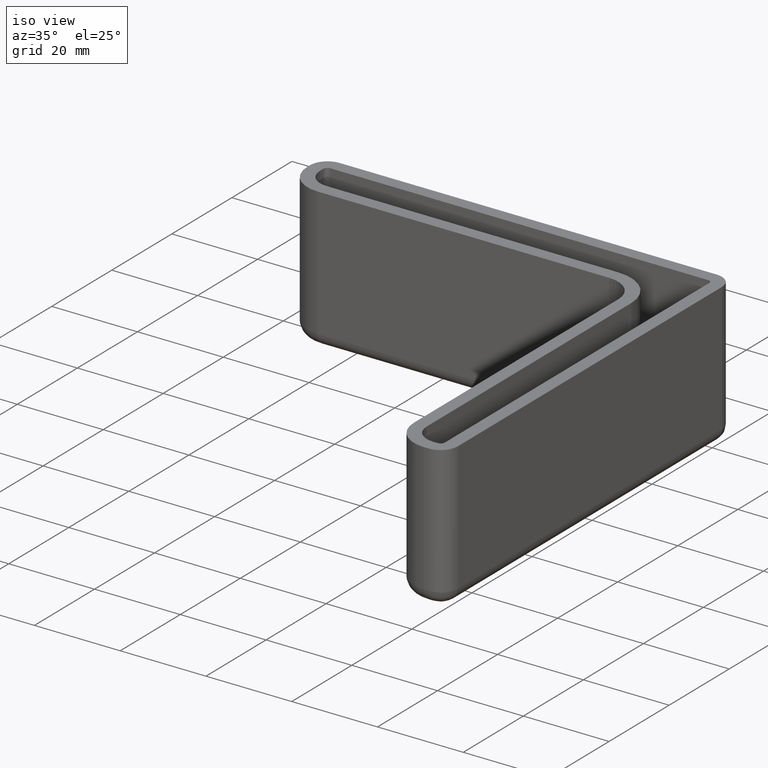
[diagram: clean part render]
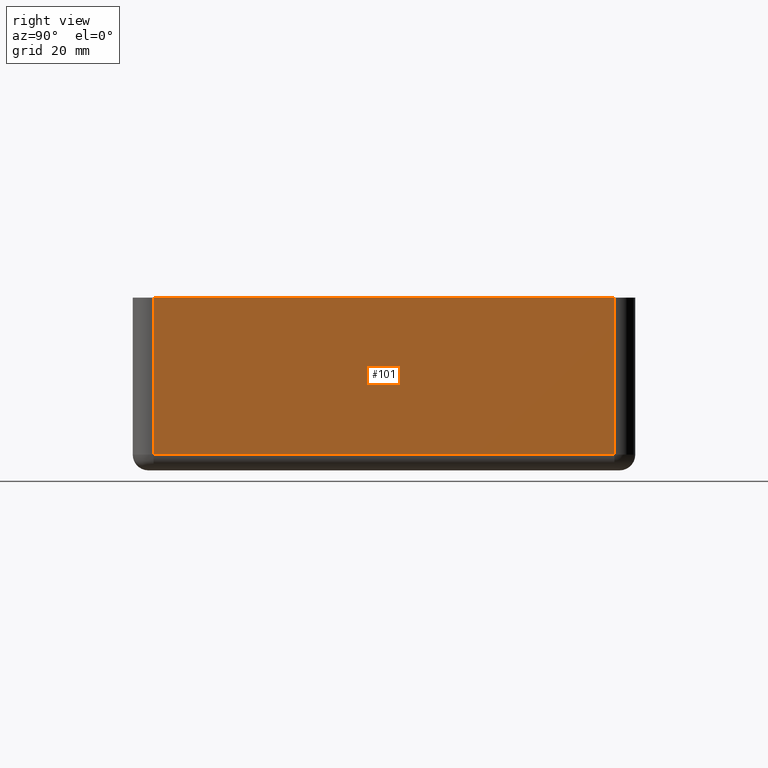
[diagram: tour spotlight — one face highlighted and labeled with its STEP entity id]
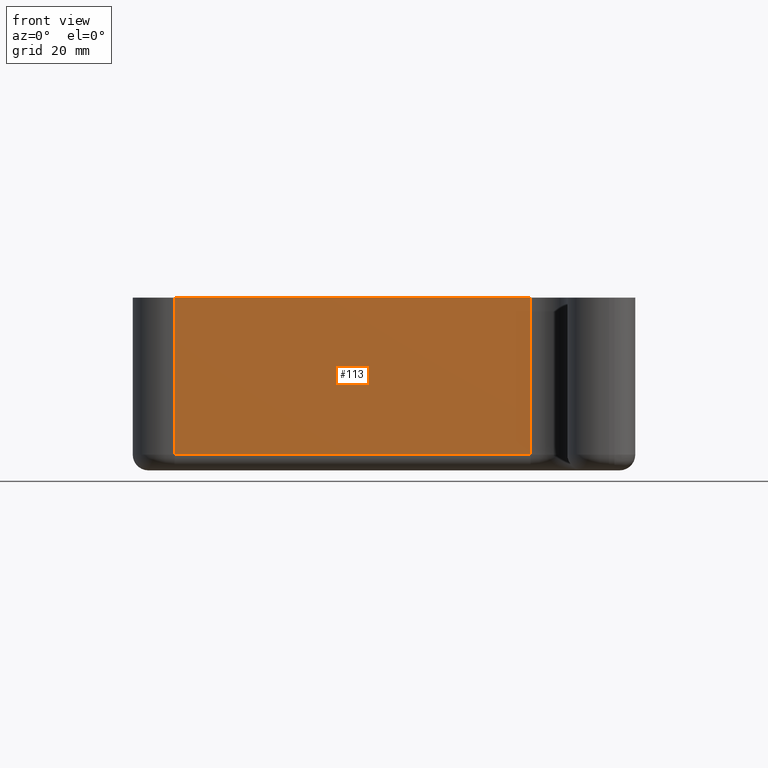
[diagram: tour spotlight — one face highlighted and labeled with its STEP entity id]
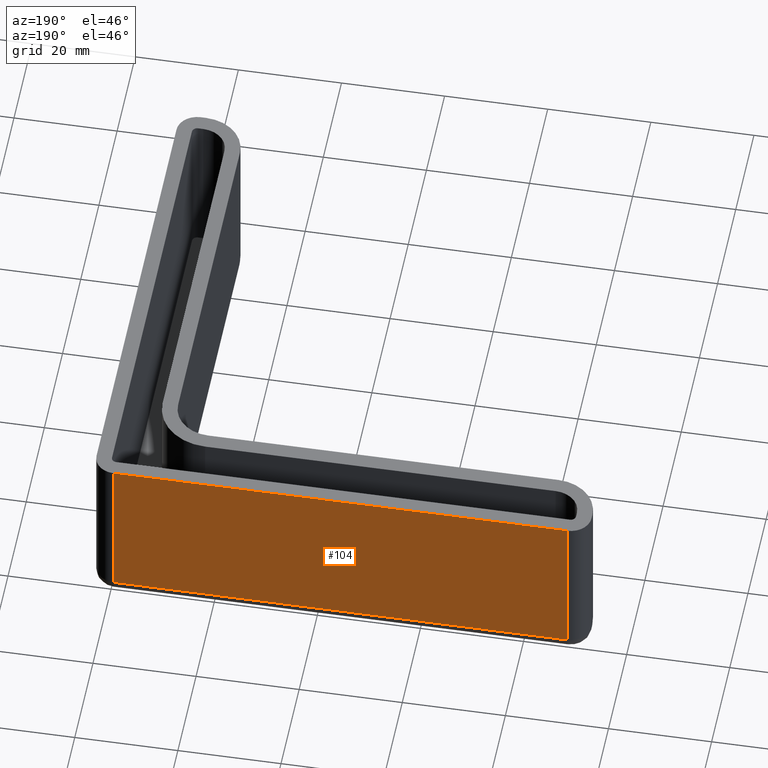
[diagram: tour spotlight — one face highlighted and labeled with its STEP entity id]
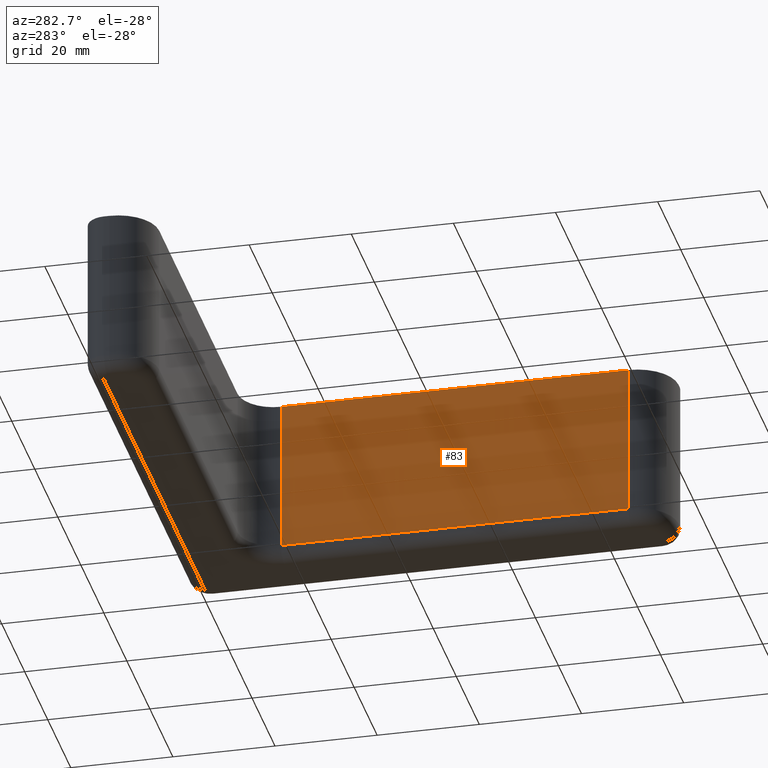
[diagram: tour spotlight — one face highlighted and labeled with its STEP entity id]
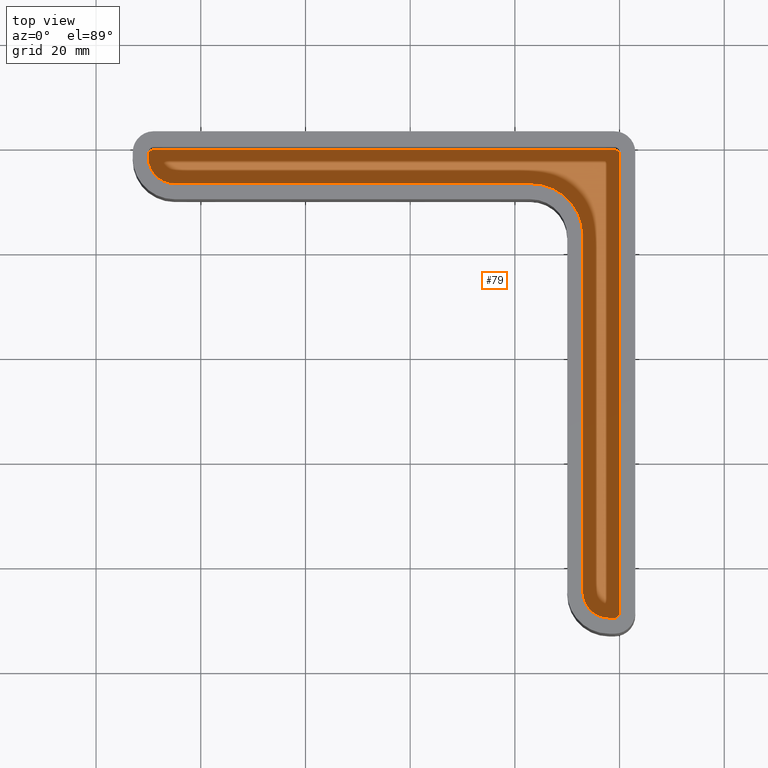
[diagram: tour spotlight — one face highlighted and labeled with its STEP entity id]
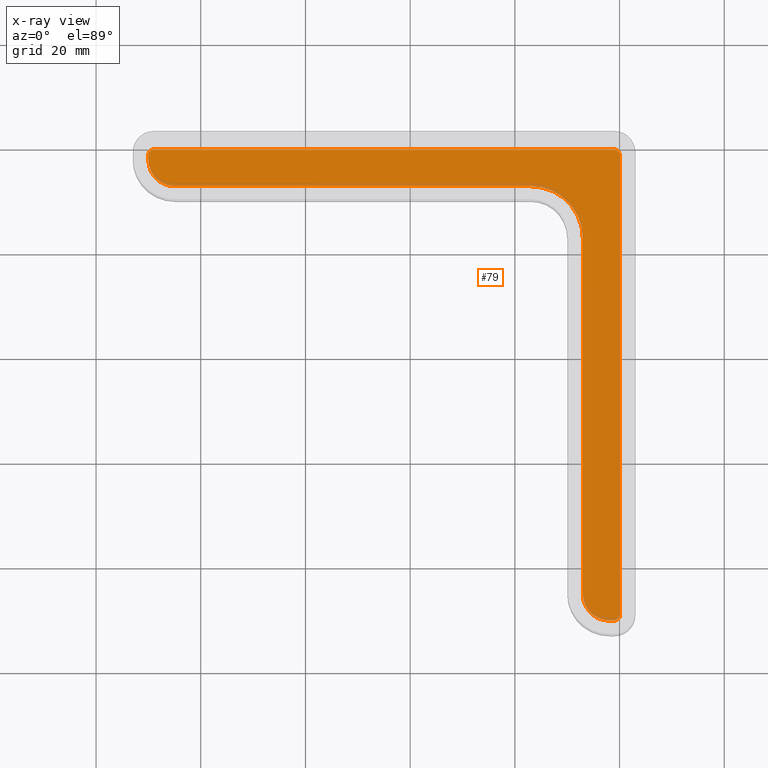
[diagram: x-ray of the same camera — body ghosted, this tour face saturated]
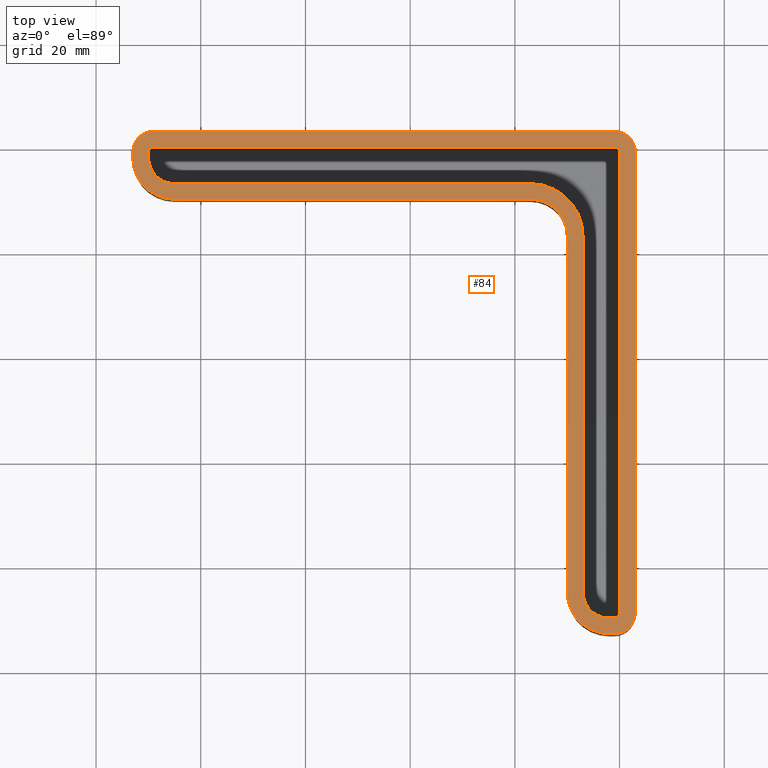
[diagram: tour spotlight — one face highlighted and labeled with its STEP entity id]
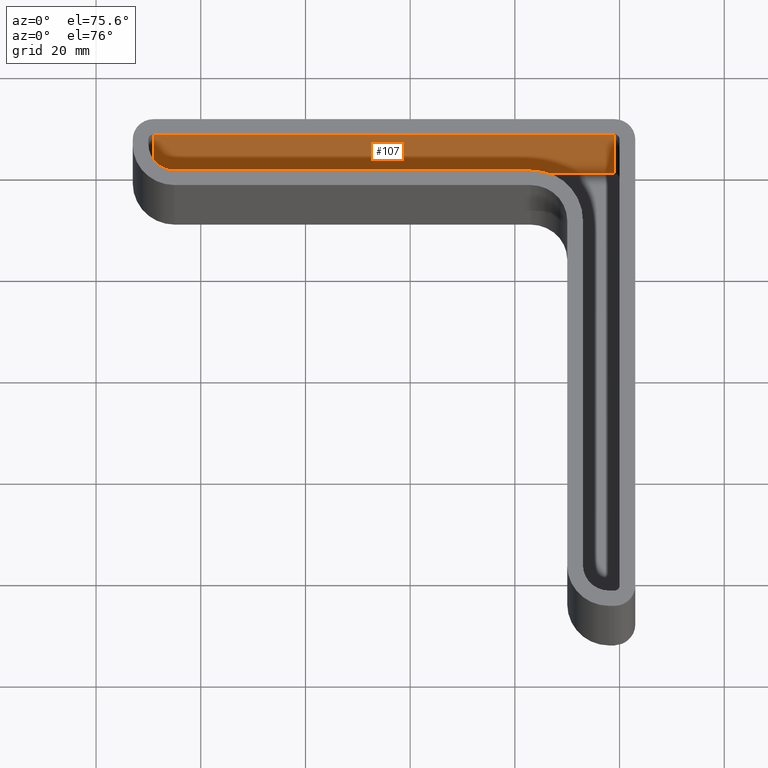
[diagram: tour spotlight — one face highlighted and labeled with its STEP entity id]
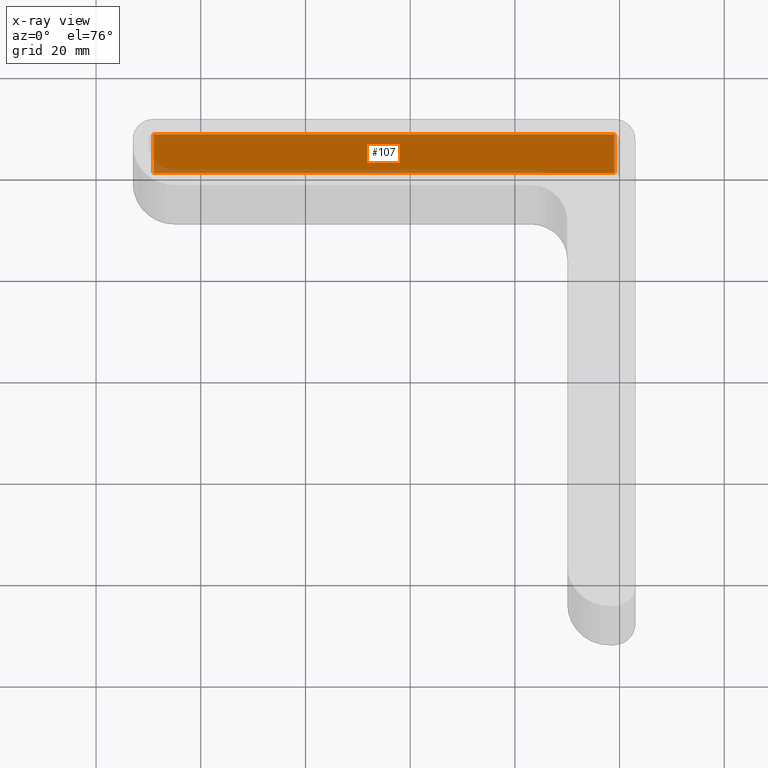
[diagram: x-ray of the same camera — body ghosted, this tour face saturated]
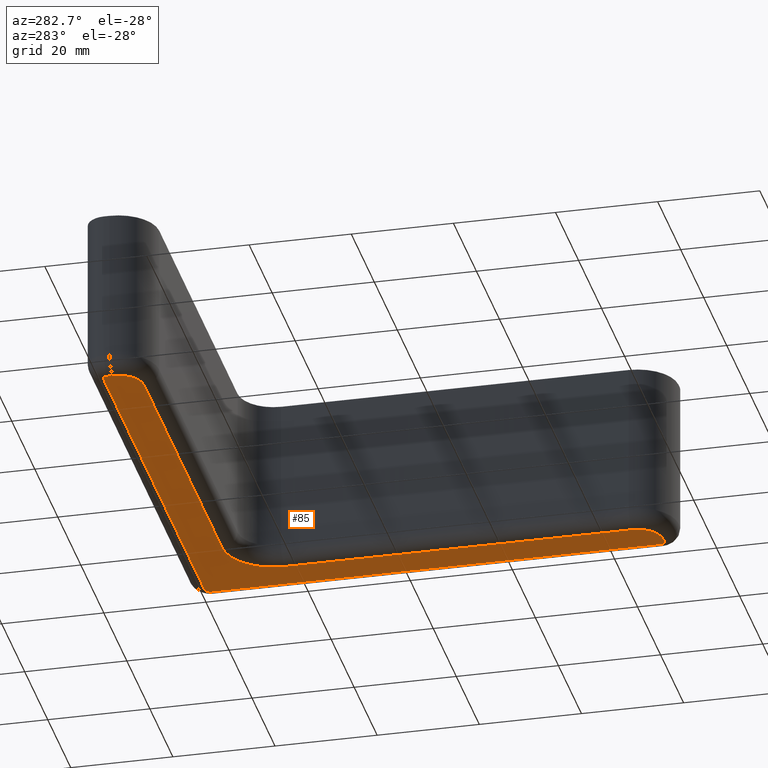
[diagram: tour spotlight — one face highlighted and labeled with its STEP entity id]
A machine part: a face-by-face anatomy tour. The part has 39 B-rep faces; the first image is the clean iso view, then the 8 largest visible faces are spotlighted one at a time (largest first), each with its STEP entity span.

Face 1 — right view, entity #101. In plain terms, the highlighted planar face has unit normal (1, 0, -0).
Definition (entity closure, byte-faithful):
#101 = ADVANCED_FACE( '', ( #168 ), #169, .T. );
#168 = FACE_OUTER_BOUND( '', #292, .T. );
#169 = PLANE( '', #293 );
#292 = EDGE_LOOP( '', ( #527, #528, #529, #530 ) );
#293 = AXIS2_PLACEMENT_3D( '', #531, #532, #533 );
#527 = ORIENTED_EDGE( '', *, *, #693, .F. );
#528 = ORIENTED_EDGE( '', *, *, #707, .F. );
#529 = ORIENTED_EDGE( '', *, *, #657, .F. );
#530 = ORIENTED_EDGE( '', *, *, #703, .F. );
#531 = CARTESIAN_POINT( '', ( 2.99999999999999, -90.0000000000000, -30.0000000000000 ) );
#532 = DIRECTION( '', ( 1.00000000000000, 3.58732406867153E-049, -3.58678896750442E-017 ) );
#533 = DIRECTION( '', ( 3.58678896750442E-017, -8.65927457071936E-017, 1.00000000000000 ) );
#657 = EDGE_CURVE( '', #785, #788, #789, .T. );
#693 = EDGE_CURVE( '', #844, #847, #849, .T. );
#703 = EDGE_CURVE( '', #847, #785, #859, .T. );
#707 = EDGE_CURVE( '', #788, #844, #863, .T. );
#785 = VERTEX_POINT( '', #963 );
#788 = VERTEX_POINT( '', #966 );
#789 = LINE( '', #967, #968 );
#844 = VERTEX_POINT( '', #1036 );
#847 = VERTEX_POINT( '', #1039 );
#849 = LINE( '', #1041, #1042 );
#859 = LINE( '', #1058, #1059 );
#863 = LINE( '', #1066, #1067 );
#963 = CARTESIAN_POINT( '', ( 2.99999999999999, -89.0000000000000, -8.16105878667191E-015 ) );
#966 = CARTESIAN_POINT( '', ( 2.99999999999999, -0.999999999999994, -5.40897164438877E-016 ) );
#967 = CARTESIAN_POINT( '', ( 2.99999999999998, -67.5000000000000, -6.29931475396725E-015 ) );
#968 = VECTOR( '', #1153, 1000.00000000000 );
#1036 = CARTESIAN_POINT( '', ( 2.99999999999998, -0.999999999999993, -30.0000000000000 ) );
#1039 = CARTESIAN_POINT( '', ( 3.00000000000000, -89.0000000000000, -30.0000000000000 ) );
#1041 = CARTESIAN_POINT( '', ( 2.99999999999998, -67.5000000000000, -30.0000000000000 ) );
#1042 = VECTOR( '', #1233, 1000.00000000000 );
#1058 = CARTESIAN_POINT( '', ( 3.00000000000000, -89.0000000000000, -30.0000000000000 ) );
#1059 = VECTOR( '', #1249, 1000.00000000000 );
#1066 = CARTESIAN_POINT( '', ( 2.99999999999998, -0.999999999999993, -30.0000000000000 ) );
#1067 = VECTOR( '', #1253, 1000.00000000000 );
#1153 = DIRECTION( '', ( 0.000000000000000, 1.00000000000000, 8.65927457071936E-017 ) );
#1233 = DIRECTION( '', ( 0.000000000000000, -1.00000000000000, -8.65927457071936E-017 ) );
#1249 = DIRECTION( '', ( 3.58678896750442E-017, -8.65927457071936E-017, 1.00000000000000 ) );
#1253 = DIRECTION( '', ( -3.58678896750442E-017, 8.65927457071936E-017, -1.00000000000000 ) );

Face 2 — front view, entity #113. In plain terms, the highlighted planar face has unit normal (0, -1, -0).
Definition (entity closure, byte-faithful):
#113 = ADVANCED_FACE( '', ( #192 ), #193, .T. );
#192 = FACE_OUTER_BOUND( '', #316, .T. );
#193 = PLANE( '', #317 );
#316 = EDGE_LOOP( '', ( #611, #612, #613, #614 ) );
#317 = AXIS2_PLACEMENT_3D( '', #615, #616, #617 );
#611 = ORIENTED_EDGE( '', *, *, #688, .F. );
#612 = ORIENTED_EDGE( '', *, *, #713, .F. );
#613 = ORIENTED_EDGE( '', *, *, #662, .F. );
#614 = ORIENTED_EDGE( '', *, *, #695, .F. );
#615 = CARTESIAN_POINT( '', ( -90.0000000000000, -9.99999999999999, -30.0000000000000 ) );
#616 = DIRECTION( '', ( 0.000000000000000, -1.00000000000000, -8.65927457071935E-017 ) );
#617 = DIRECTION( '', ( -1.00000000000000, -1.12138607406181E-032, 1.29501156812106E-016 ) );
#662 = EDGE_CURVE( '', #795, #797, #798, .T. );
#688 = EDGE_CURVE( '', #836, #840, #842, .T. );
#695 = EDGE_CURVE( '', #840, #795, #851, .T. );
#713 = EDGE_CURVE( '', #797, #836, #869, .T. );
#795 = VERTEX_POINT( '', #976 );
#797 = VERTEX_POINT( '', #978 );
#798 = LINE( '', #979, #980 );
#836 = VERTEX_POINT( '', #1027 );
#840 = VERTEX_POINT( '', #1031 );
#842 = LINE( '', #1033, #1034 );
#851 = LINE( '', #1044, #1045 );
#869 = LINE( '', #1078, #1079 );
#976 = CARTESIAN_POINT( '', ( -85.0000000000000, -9.99999999999999, 1.46794735782419E-015 ) );
#978 = CARTESIAN_POINT( '', ( -17.0000000000000, -10.0000000000000, 4.17360162006124E-016 ) );
#979 = CARTESIAN_POINT( '', ( -67.5000000000000, -9.99999999999999, -4.86126544253536E-016 ) );
#980 = VECTOR( '', #1162, 1000.00000000000 );
#1027 = CARTESIAN_POINT( '', ( -17.0000000000000, -9.99999999999999, -30.0000000000000 ) );
#1031 = CARTESIAN_POINT( '', ( -85.0000000000000, -9.99999999999999, -30.0000000000000 ) );
#1033 = CARTESIAN_POINT( '', ( -67.5000000000000, -9.99999999999999, -30.0000000000000 ) );
#1034 = VECTOR( '', #1220, 1000.00000000000 );
#1044 = CARTESIAN_POINT( '', ( -85.0000000000000, -9.99999999999999, -30.0000000000000 ) );
#1045 = VECTOR( '', #1237, 1000.00000000000 );
#1078 = CARTESIAN_POINT( '', ( -17.0000000000000, -9.99999999999999, -30.0000000000000 ) );
#1079 = VECTOR( '', #1259, 1000.00000000000 );
#1162 = DIRECTION( '', ( 1.00000000000000, 2.22044604925031E-016, -3.58678896750442E-017 ) );
#1220 = DIRECTION( '', ( -1.00000000000000, -2.22044604925031E-016, 3.58678896750442E-017 ) );
#1237 = DIRECTION( '', ( 3.58678896750442E-017, -8.65927457071936E-017, 1.00000000000000 ) );
#1259 = DIRECTION( '', ( -3.58678896750442E-017, 8.65927457071936E-017, -1.00000000000000 ) );

Face 3 — auxiliary view, entity #104. In plain terms, the highlighted planar face has unit normal (0, 1, 0).
Definition (entity closure, byte-faithful):
#104 = ADVANCED_FACE( '', ( #174 ), #175, .T. );
#174 = FACE_OUTER_BOUND( '', #298, .T. );
#175 = PLANE( '', #299 );
#298 = EDGE_LOOP( '', ( #548, #549, #550, #551 ) );
#299 = AXIS2_PLACEMENT_3D( '', #552, #553, #554 );
#548 = ORIENTED_EDGE( '', *, *, #648, .F. );
#549 = ORIENTED_EDGE( '', *, *, #651, .F. );
#550 = ORIENTED_EDGE( '', *, *, #659, .F. );
#551 = ORIENTED_EDGE( '', *, *, #710, .F. );
#552 = CARTESIAN_POINT( '', ( -1.60461921527855E-014, 3.00000000000000, -30.0000000000000 ) );
#553 = DIRECTION( '', ( 3.58732406867153E-049, 1.00000000000000, 8.65927457071936E-017 ) );
#554 = DIRECTION( '', ( -3.58678896750442E-017, 8.65927457071936E-017, -1.00000000000000 ) );
#648 = EDGE_CURVE( '', #762, #767, #771, .T. );
#651 = EDGE_CURVE( '', #774, #762, #776, .T. );
#659 = EDGE_CURVE( '', #790, #774, #792, .T. );
#710 = EDGE_CURVE( '', #767, #790, #866, .T. );
#762 = VERTEX_POINT( '', #932 );
#767 = VERTEX_POINT( '', #937 );
#771 = LINE( '', #942, #943 );
#774 = VERTEX_POINT( '', #947 );
#776 = LINE( '', #949, #950 );
#790 = VERTEX_POINT( '', #969 );
#792 = LINE( '', #971, #972 );
#866 = LINE( '', #1072, #1073 );
#932 = CARTESIAN_POINT( '', ( -89.0000000000000, 3.00000000000001, -30.0000000000000 ) );
#937 = CARTESIAN_POINT( '', ( -1.00000000000002, 3.00000000000000, -30.0000000000000 ) );
#942 = CARTESIAN_POINT( '', ( -22.5000000000000, 3.00000000000000, -30.0000000000000 ) );
#943 = VECTOR( '', #1140, 1000.00000000000 );
#947 = CARTESIAN_POINT( '', ( -89.0000000000000, 3.00000000000001, 2.24728206918893E-015 ) );
#949 = CARTESIAN_POINT( '', ( -89.0000000000000, 3.00000000000001, -30.0000000000000 ) );
#950 = VECTOR( '', #1145, 1000.00000000000 );
#969 = CARTESIAN_POINT( '', ( -1.00000000000001, 3.00000000000000, -5.40897164438877E-016 ) );
#971 = CARTESIAN_POINT( '', ( -22.5000000000000, 3.00000000000000, 1.06680575481008E-015 ) );
#972 = VECTOR( '', #1157, 1000.00000000000 );
#1072 = CARTESIAN_POINT( '', ( -1.00000000000002, 3.00000000000000, -30.0000000000000 ) );
#1073 = VECTOR( '', #1256, 1000.00000000000 );
#1140 = DIRECTION( '', ( 1.00000000000000, 0.000000000000000, -3.58678896750442E-017 ) );
#1145 = DIRECTION( '', ( -3.58678896750442E-017, 8.65927457071936E-017, -1.00000000000000 ) );
#1157 = DIRECTION( '', ( -1.00000000000000, 0.000000000000000, 3.58678896750442E-017 ) );
#1256 = DIRECTION( '', ( 3.58678896750442E-017, -8.65927457071936E-017, 1.00000000000000 ) );

Face 4 — auxiliary view, entity #83. In plain terms, the highlighted planar face has unit normal (-1, -0, 0).
Definition (entity closure, byte-faithful):
#83 = ADVANCED_FACE( '', ( #131 ), #132, .T. );
#131 = FACE_OUTER_BOUND( '', #225, .T. );
#132 = PLANE( '', #226 );
#225 = EDGE_LOOP( '', ( #379, #380, #381, #382 ) );
#226 = AXIS2_PLACEMENT_3D( '', #383, #384, #385 );
#379 = ORIENTED_EDGE( '', *, *, #652, .F. );
#380 = ORIENTED_EDGE( '', *, *, #653, .F. );
#381 = ORIENTED_EDGE( '', *, *, #654, .F. );
#382 = ORIENTED_EDGE( '', *, *, #655, .F. );
#383 = CARTESIAN_POINT( '', ( -10.0000000000000, -6.99999999999999, -30.0000000000000 ) );
#384 = DIRECTION( '', ( -1.00000000000000, -3.58732406867153E-049, 3.58678896750442E-017 ) );
#385 = DIRECTION( '', ( -3.10589904968477E-033, -1.00000000000000, -8.65927457071936E-017 ) );
#652 = EDGE_CURVE( '', #777, #778, #779, .T. );
#653 = EDGE_CURVE( '', #780, #777, #781, .T. );
#654 = EDGE_CURVE( '', #782, #780, #783, .T. );
#655 = EDGE_CURVE( '', #778, #782, #784, .T. );
#777 = VERTEX_POINT( '', #951 );
#778 = VERTEX_POINT( '', #952 );
#779 = LINE( '', #953, #954 );
#780 = VERTEX_POINT( '', #955 );
#781 = LINE( '', #956, #957 );
#782 = VERTEX_POINT( '', #958 );
#783 = LINE( '', #959, #960 );
#784 = LINE( '', #961, #962 );
#951 = CARTESIAN_POINT( '', ( -10.0000000000000, -85.0000000000000, -30.0000000000000 ) );
#952 = CARTESIAN_POINT( '', ( -10.0000000000000, -17.0000000000000, -30.0000000000000 ) );
#953 = CARTESIAN_POINT( '', ( -10.0000000000000, -26.0000000000000, -30.0000000000000 ) );
#954 = VECTOR( '', #1146, 1000.00000000000 );
#955 = CARTESIAN_POINT( '', ( -10.0000000000000, -85.0000000000000, -8.94039349803665E-015 ) );
#956 = CARTESIAN_POINT( '', ( -10.0000000000000, -85.0000000000000, -30.0000000000000 ) );
#957 = VECTOR( '', #1147, 1000.00000000000 );
#958 = CARTESIAN_POINT( '', ( -10.0000000000000, -17.0000000000000, -3.05208678994749E-015 ) );
#959 = CARTESIAN_POINT( '', ( -10.0000000000000, -26.0000000000000, -3.83142150131223E-015 ) );
#960 = VECTOR( '', #1148, 1000.00000000000 );
#961 = CARTESIAN_POINT( '', ( -10.0000000000000, -17.0000000000000, -30.0000000000000 ) );
#962 = VECTOR( '', #1149, 1000.00000000000 );
#1146 = DIRECTION( '', ( 0.000000000000000, 1.00000000000000, 8.65927457071936E-017 ) );
#1147 = DIRECTION( '', ( -3.58678896750442E-017, 8.65927457071936E-017, -1.00000000000000 ) );
#1148 = DIRECTION( '', ( 0.000000000000000, -1.00000000000000, -8.65927457071936E-017 ) );
#1149 = DIRECTION( '', ( 3.58678896750442E-017, -8.65927457071936E-017, 1.00000000000000 ) );

Face 5 — top view, entity #79. An x-ray twin of the same camera follows (body ghosted, this face saturated) — the face is partly hidden behind the body. In plain terms, the highlighted planar face has unit normal (0, -0, 1).
Definition (entity closure, byte-faithful):
#79 = ADVANCED_FACE( '', ( #123 ), #124, .T. );
#123 = FACE_OUTER_BOUND( '', #202, .T. );
#124 = PLANE( '', #203 );
#202 = EDGE_LOOP( '', ( #346, #347, #348, #349, #350, #351, #352, #353, #354, #355, #356, #357 ) );
#203 = AXIS2_PLACEMENT_3D( '', #358, #359, #360 );
#346 = ORIENTED_EDGE( '', *, *, #633, .T. );
#347 = ORIENTED_EDGE( '', *, *, #634, .T. );
#348 = ORIENTED_EDGE( '', *, *, #635, .T. );
#349 = ORIENTED_EDGE( '', *, *, #636, .T. );
#350 = ORIENTED_EDGE( '', *, *, #637, .F. );
#351 = ORIENTED_EDGE( '', *, *, #638, .F. );
#352 = ORIENTED_EDGE( '', *, *, #639, .T. );
#353 = ORIENTED_EDGE( '', *, *, #640, .F. );
#354 = ORIENTED_EDGE( '', *, *, #641, .T. );
#355 = ORIENTED_EDGE( '', *, *, #630, .F. );
#356 = ORIENTED_EDGE( '', *, *, #626, .T. );
#357 = ORIENTED_EDGE( '', *, *, #642, .T. );
#358 = CARTESIAN_POINT( '', ( -45.0000000000000, -45.0000000000000, -30.0000000000000 ) );
#359 = DIRECTION( '', ( 3.58678896750442E-017, -8.65927457071936E-017, 1.00000000000000 ) );
#360 = DIRECTION( '', ( -1.00000000000000, 1.06733799631484E-048, 3.58678896750442E-017 ) );
#626 = EDGE_CURVE( '', #730, #731, #732, .T. );
#630 = EDGE_CURVE( '', #730, #738, #739, .T. );
#633 = EDGE_CURVE( '', #743, #744, #745, .T. );
#634 = EDGE_CURVE( '', #744, #746, #747, .T. );
#635 = EDGE_CURVE( '', #746, #748, #749, .T. );
#636 = EDGE_CURVE( '', #748, #750, #751, .T. );
#637 = EDGE_CURVE( '', #752, #750, #753, .T. );
#638 = EDGE_CURVE( '', #754, #752, #755, .T. );
#639 = EDGE_CURVE( '', #754, #756, #757, .T. );
#640 = EDGE_CURVE( '', #758, #756, #759, .T. );
#641 = EDGE_CURVE( '', #758, #738, #760, .T. );
#642 = EDGE_CURVE( '', #731, #743, #761, .T. );
#730 = VERTEX_POINT( '', #890 );
#731 = VERTEX_POINT( '', #891 );
#732 = CIRCLE( '', #892, 1.00000000000000 );
#738 = VERTEX_POINT( '', #900 );
#739 = LINE( '', #901, #902 );
#743 = VERTEX_POINT( '', #908 );
#744 = VERTEX_POINT( '', #909 );
#745 = CIRCLE( '', #910, 1.00000000000000 );
#746 = VERTEX_POINT( '', #911 );
#747 = LINE( '', #912, #913 );
#748 = VERTEX_POINT( '', #914 );
#749 = CIRCLE( '', #915, 5.00000000000000 );
#750 = VERTEX_POINT( '', #916 );
#751 = LINE( '', #917, #918 );
#752 = VERTEX_POINT( '', #919 );
#753 = CIRCLE( '', #920, 10.0000000000000 );
#754 = VERTEX_POINT( '', #921 );
#755 = LINE( '', #922, #923 );
#756 = VERTEX_POINT( '', #924 );
#757 = CIRCLE( '', #925, 5.00000000000000 );
#758 = VERTEX_POINT( '', #926 );
#759 = LINE( '', #927, #928 );
#760 = CIRCLE( '', #929, 1.00000000000000 );
#761 = LINE( '', #930, #931 );
#890 = CARTESIAN_POINT( '', ( -1.64798730217797E-014, -0.999999999999992, -30.0000000000000 ) );
#891 = CARTESIAN_POINT( '', ( -1.00000000000002, 3.90312782094782E-015, -30.0000000000000 ) );
#892 = AXIS2_PLACEMENT_3D( '', #1096, #1097, #1098 );
#900 = CARTESIAN_POINT( '', ( -6.93889390390723E-015, -89.0000000000000, -30.0000000000000 ) );
#901 = CARTESIAN_POINT( '', ( -1.64798730217797E-014, 3.90312782094782E-015, -30.0000000000000 ) );
#902 = VECTOR( '', #1104, 1000.00000000000 );
#908 = CARTESIAN_POINT( '', ( -89.0000000000000, 6.93889390390723E-015, -30.0000000000000 ) );
#909 = CARTESIAN_POINT( '', ( -90.0000000000000, -0.999999999999980, -30.0000000000000 ) );
#910 = AXIS2_PLACEMENT_3D( '', #1107, #1108, #1109 );
#911 = CARTESIAN_POINT( '', ( -90.0000000000000, -1.99999999999999, -30.0000000000000 ) );
#912 = CARTESIAN_POINT( '', ( -90.0000000000000, 1.38777878078145E-014, -30.0000000000000 ) );
#913 = VECTOR( '', #1110, 1000.00000000000 );
#914 = CARTESIAN_POINT( '', ( -85.0000000000000, -6.99999999999999, -30.0000000000000 ) );
#915 = AXIS2_PLACEMENT_3D( '', #1111, #1112, #1113 );
#916 = CARTESIAN_POINT( '', ( -17.0000000000000, -6.99999999999999, -30.0000000000000 ) );
#917 = CARTESIAN_POINT( '', ( -90.0000000000000, -7.00000000000000, -30.0000000000000 ) );
#918 = VECTOR( '', #1114, 1000.00000000000 );
#919 = CARTESIAN_POINT( '', ( -7.00000000000002, -17.0000000000000, -30.0000000000000 ) );
#920 = AXIS2_PLACEMENT_3D( '', #1115, #1116, #1117 );
#921 = CARTESIAN_POINT( '', ( -7.00000000000001, -85.0000000000000, -30.0000000000000 ) );
#922 = CARTESIAN_POINT( '', ( -7.00000000000003, -90.0000000000000, -30.0000000000000 ) );
#923 = VECTOR( '', #1118, 1000.00000000000 );
#924 = CARTESIAN_POINT( '', ( -2.00000000000002, -90.0000000000000, -30.0000000000000 ) );
#925 = AXIS2_PLACEMENT_3D( '', #1119, #1120, #1121 );
#926 = CARTESIAN_POINT( '', ( -1.00000000000001, -90.0000000000000, -30.0000000000000 ) );
#927 = CARTESIAN_POINT( '', ( -2.08166817117217E-014, -90.0000000000000, -30.0000000000000 ) );
#928 = VECTOR( '', #1122, 1000.00000000000 );
#929 = AXIS2_PLACEMENT_3D( '', #1123, #1124, #1125 );
#930 = CARTESIAN_POINT( '', ( -1.64798730217797E-014, 3.90312782094782E-015, -30.0000000000000 ) );
#931 = VECTOR( '', #1126, 1000.00000000000 );
#1096 = CARTESIAN_POINT( '', ( -1.00000000000002, -0.999999999999993, -30.0000000000000 ) );
#1097 = DIRECTION( '', ( 3.58678896750442E-017, -8.65927457071936E-017, 1.00000000000000 ) );
#1098 = DIRECTION( '', ( 0.707106781186549, 0.707106781186546, 3.58678896750440E-017 ) );
#1104 = DIRECTION( '', ( 0.000000000000000, -1.00000000000000, -8.65927457071936E-017 ) );
#1107 = CARTESIAN_POINT( '', ( -89.0000000000000, -0.999999999999987, -30.0000000000000 ) );
#1108 = DIRECTION( '', ( 3.58678896750441E-017, -8.65927457071935E-017, 1.00000000000000 ) );
#1109 = DIRECTION( '', ( -0.707106781186552, 0.707106781186543, 8.65927457071933E-017 ) );
#1110 = DIRECTION( '', ( 0.000000000000000, -1.00000000000000, -8.65927457071936E-017 ) );
#1111 = CARTESIAN_POINT( '', ( -85.0000000000000, -1.99999999999999, -30.0000000000000 ) );
#1112 = DIRECTION( '', ( 3.58678896750442E-017, -8.65927457071936E-017, 1.00000000000000 ) );
#1113 = DIRECTION( '', ( -0.707106781186548, -0.707106781186547, -3.58678896750441E-017 ) );
#1114 = DIRECTION( '', ( 1.00000000000000, 2.22044604925031E-016, -3.58678896750442E-017 ) );
#1115 = CARTESIAN_POINT( '', ( -17.0000000000000, -17.0000000000000, -30.0000000000000 ) );
#1116 = DIRECTION( '', ( 3.58678896750442E-017, -8.65927457071936E-017, 1.00000000000000 ) );
#1117 = DIRECTION( '', ( 0.707106781186547, 0.707106781186548, 3.58678896750442E-017 ) );
#1118 = DIRECTION( '', ( 0.000000000000000, 1.00000000000000, 8.65927457071936E-017 ) );
#1119 = CARTESIAN_POINT( '', ( -2.00000000000002, -85.0000000000000, -30.0000000000000 ) );
#1120 = DIRECTION( '', ( 3.58678896750442E-017, -8.65927457071936E-017, 1.00000000000000 ) );
#1121 = DIRECTION( '', ( -0.707106781186547, -0.707106781186548, -3.58678896750442E-017 ) );
#1122 = DIRECTION( '', ( -1.00000000000000, 0.000000000000000, 3.58678896750442E-017 ) );
#1123 = CARTESIAN_POINT( '', ( -1.00000000000001, -89.0000000000000, -30.0000000000000 ) );
#1124 = DIRECTION( '', ( 3.58678896750442E-017, -8.65927457071936E-017, 1.00000000000000 ) );
#1125 = DIRECTION( '', ( 0.707106781186555, -0.707106781186540, -8.65927457071932E-017 ) );
#1126 = DIRECTION( '', ( -1.00000000000000, 0.000000000000000, 3.58678896750442E-017 ) );

Face 6 — top view, entity #84. In plain terms, the highlighted planar face has unit normal (0, -0, 1).
Definition (entity closure, byte-faithful):
#84 = ADVANCED_FACE( '', ( #133, #134 ), #135, .T. );
#133 = FACE_OUTER_BOUND( '', #227, .T. );
#134 = FACE_BOUND( '', #228, .T. );
#135 = PLANE( '', #229 );
#227 = EDGE_LOOP( '', ( #386, #387, #388, #389, #390, #391, #392, #393, #394, #395, #396, #397 ) );
#228 = EDGE_LOOP( '', ( #398, #399, #400, #401, #402, #403, #404, #405, #406, #407, #408, #409 ) );
#229 = AXIS2_PLACEMENT_3D( '', #410, #411, #412 );
#386 = ORIENTED_EDGE( '', *, *, #656, .F. );
#387 = ORIENTED_EDGE( '', *, *, #657, .T. );
#388 = ORIENTED_EDGE( '', *, *, #658, .F. );
#389 = ORIENTED_EDGE( '', *, *, #659, .T. );
#390 = ORIENTED_EDGE( '', *, *, #650, .F. );
#391 = ORIENTED_EDGE( '', *, *, #660, .T. );
#392 = ORIENTED_EDGE( '', *, *, #661, .F. );
#393 = ORIENTED_EDGE( '', *, *, #662, .T. );
#394 = ORIENTED_EDGE( '', *, *, #663, .F. );
#395 = ORIENTED_EDGE( '', *, *, #654, .T. );
#396 = ORIENTED_EDGE( '', *, *, #664, .F. );
#397 = ORIENTED_EDGE( '', *, *, #665, .T. );
#398 = ORIENTED_EDGE( '', *, *, #666, .F. );
#399 = ORIENTED_EDGE( '', *, *, #667, .T. );
#400 = ORIENTED_EDGE( '', *, *, #668, .F. );
#401 = ORIENTED_EDGE( '', *, *, #669, .T. );
#402 = ORIENTED_EDGE( '', *, *, #670, .F. );
#403 = ORIENTED_EDGE( '', *, *, #671, .T. );
#404 = ORIENTED_EDGE( '', *, *, #628, .F. );
#405 = ORIENTED_EDGE( '', *, *, #632, .T. );
#406 = ORIENTED_EDGE( '', *, *, #672, .F. );
#407 = ORIENTED_EDGE( '', *, *, #673, .T. );
#408 = ORIENTED_EDGE( '', *, *, #674, .F. );
#409 = ORIENTED_EDGE( '', *, *, #675, .T. );
#410 = CARTESIAN_POINT( '', ( -45.0000000000000, -45.0000000000000, -1.56853586559346E-015 ) );
#411 = DIRECTION( '', ( 3.58678896750442E-017, -8.65927457071936E-017, 1.00000000000000 ) );
#412 = DIRECTION( '', ( -1.00000000000000, 1.06733799631484E-048, 3.58678896750442E-017 ) );
#628 = EDGE_CURVE( '', #733, #735, #736, .T. );
#632 = EDGE_CURVE( '', #733, #740, #742, .T. );
#650 = EDGE_CURVE( '', #772, #774, #775, .T. );
#654 = EDGE_CURVE( '', #782, #780, #783, .T. );
#656 = EDGE_CURVE( '', #785, #786, #787, .T. );
#657 = EDGE_CURVE( '', #785, #788, #789, .T. );
#658 = EDGE_CURVE( '', #790, #788, #791, .T. );
#659 = EDGE_CURVE( '', #790, #774, #792, .T. );
#660 = EDGE_CURVE( '', #772, #793, #794, .T. );
#661 = EDGE_CURVE( '', #795, #793, #796, .T. );
#662 = EDGE_CURVE( '', #795, #797, #798, .T. );
#663 = EDGE_CURVE( '', #782, #797, #799, .T. );
#664 = EDGE_CURVE( '', #800, #780, #801, .T. );
#665 = EDGE_CURVE( '', #800, #786, #802, .T. );
#666 = EDGE_CURVE( '', #803, #804, #805, .T. );
#667 = EDGE_CURVE( '', #803, #806, #807, .T. );
#668 = EDGE_CURVE( '', #808, #806, #809, .T. );
#669 = EDGE_CURVE( '', #808, #810, #811, .T. );
#670 = EDGE_CURVE( '', #812, #810, #813, .T. );
#671 = EDGE_CURVE( '', #812, #735, #814, .T. );
#672 = EDGE_CURVE( '', #815, #740, #816, .T. );
#673 = EDGE_CURVE( '', #815, #817, #818, .T. );
#674 = EDGE_CURVE( '', #819, #817, #820, .T. );
#675 = EDGE_CURVE( '', #819, #804, #821, .T. );
#733 = VERTEX_POINT( '', #893 );
#735 = VERTEX_POINT( '', #896 );
#736 = CIRCLE( '', #897, 1.00000000000000 );
#740 = VERTEX_POINT( '', #903 );
#742 = LINE( '', #906, #907 );
#772 = VERTEX_POINT( '', #944 );
#774 = VERTEX_POINT( '', #947 );
#775 = CIRCLE( '', #948, 4.00000000000000 );
#780 = VERTEX_POINT( '', #955 );
#782 = VERTEX_POINT( '', #958 );
#783 = LINE( '', #959, #960 );
#785 = VERTEX_POINT( '', #963 );
#786 = VERTEX_POINT( '', #964 );
#787 = CIRCLE( '', #965, 4.00000000000000 );
#788 = VERTEX_POINT( '', #966 );
#789 = LINE( '', #967, #968 );
#790 = VERTEX_POINT( '', #969 );
#791 = CIRCLE( '', #970, 4.00000000000000 );
#792 = LINE( '', #971, #972 );
#793 = VERTEX_POINT( '', #973 );
#794 = LINE( '', #974, #975 );
#795 = VERTEX_POINT( '', #976 );
#796 = CIRCLE( '', #977, 8.00000000000000 );
#797 = VERTEX_POINT( '', #978 );
#798 = LINE( '', #979, #980 );
#799 = CIRCLE( '', #981, 7.00000000000000 );
#800 = VERTEX_POINT( '', #982 );
#801 = CIRCLE( '', #983, 8.00000000000000 );
#802 = LINE( '', #984, #985 );
#803 = VERTEX_POINT( '', #986 );
#804 = VERTEX_POINT( '', #987 );
#805 = CIRCLE( '', #988, 10.0000000000000 );
#806 = VERTEX_POINT( '', #989 );
#807 = LINE( '', #990, #991 );
#808 = VERTEX_POINT( '', #992 );
#809 = CIRCLE( '', #993, 5.00000000000000 );
#810 = VERTEX_POINT( '', #994 );
#811 = LINE( '', #995, #996 );
#812 = VERTEX_POINT( '', #997 );
#813 = CIRCLE( '', #998, 1.00000000000000 );
#814 = LINE( '', #999, #1000 );
#815 = VERTEX_POINT( '', #1001 );
#816 = CIRCLE( '', #1002, 1.00000000000000 );
#817 = VERTEX_POINT( '', #1003 );
#818 = LINE( '', #1004, #1005 );
#819 = VERTEX_POINT( '', #1006 );
#820 = CIRCLE( '', #1007, 5.00000000000000 );
#821 = LINE( '', #1008, #1009 );
#893 = CARTESIAN_POINT( '', ( -1.56125112837913E-014, -0.999999999999995, -8.00675401560458E-016 ) );
#896 = CARTESIAN_POINT( '', ( -1.00000000000002, 1.30104260698261E-015, -8.00675401560458E-016 ) );
#897 = AXIS2_PLACEMENT_3D( '', #1100, #1101, #1102 );
#903 = CARTESIAN_POINT( '', ( -1.38777878078145E-014, -89.0000000000000, -8.42083702379349E-015 ) );
#906 = CARTESIAN_POINT( '', ( -1.38777878078145E-014, -67.5000000000000, -6.55909299108883E-015 ) );
#907 = VECTOR( '', #1106, 1000.00000000000 );
#944 = CARTESIAN_POINT( '', ( -93.0000000000000, -0.999999999999994, 1.55454010353138E-015 ) );
#947 = CARTESIAN_POINT( '', ( -89.0000000000000, 3.00000000000001, 2.24728206918893E-015 ) );
#948 = AXIS2_PLACEMENT_3D( '', #1142, #1143, #1144 );
#955 = CARTESIAN_POINT( '', ( -10.0000000000000, -85.0000000000000, -8.94039349803665E-015 ) );
#958 = CARTESIAN_POINT( '', ( -10.0000000000000, -17.0000000000000, -3.05208678994749E-015 ) );
#959 = CARTESIAN_POINT( '', ( -10.0000000000000, -26.0000000000000, -3.83142150131223E-015 ) );
#960 = VECTOR( '', #1148, 1000.00000000000 );
#963 = CARTESIAN_POINT( '', ( 2.99999999999999, -89.0000000000000, -8.16105878667191E-015 ) );
#964 = CARTESIAN_POINT( '', ( -1.00000000000001, -93.0000000000000, -8.85380075232946E-015 ) );
#965 = AXIS2_PLACEMENT_3D( '', #1150, #1151, #1152 );
#966 = CARTESIAN_POINT( '', ( 2.99999999999999, -0.999999999999994, -5.40897164438877E-016 ) );
#967 = CARTESIAN_POINT( '', ( 2.99999999999998, -67.5000000000000, -6.29931475396725E-015 ) );
#968 = VECTOR( '', #1153, 1000.00000000000 );
#969 = CARTESIAN_POINT( '', ( -1.00000000000001, 3.00000000000000, -5.40897164438877E-016 ) );
#970 = AXIS2_PLACEMENT_3D( '', #1154, #1155, #1156 );
#971 = CARTESIAN_POINT( '', ( -22.5000000000000, 3.00000000000000, 1.06680575481008E-015 ) );
#972 = VECTOR( '', #1157, 1000.00000000000 );
#973 = CARTESIAN_POINT( '', ( -93.0000000000000, -1.99999999999999, 1.46794735782419E-015 ) );
#974 = CARTESIAN_POINT( '', ( -93.0000000000000, -22.5000000000000, -3.07203929173278E-016 ) );
#975 = VECTOR( '', #1158, 1000.00000000000 );
#976 = CARTESIAN_POINT( '', ( -85.0000000000000, -9.99999999999999, 1.46794735782419E-015 ) );
#977 = AXIS2_PLACEMENT_3D( '', #1159, #1160, #1161 );
#978 = CARTESIAN_POINT( '', ( -17.0000000000000, -10.0000000000000, 4.17360162006124E-016 ) );
#979 = CARTESIAN_POINT( '', ( -67.5000000000000, -9.99999999999999, -4.86126544253536E-016 ) );
#980 = VECTOR( '', #1162, 1000.00000000000 );
#981 = AXIS2_PLACEMENT_3D( '', #1163, #1164, #1165 );
#982 = CARTESIAN_POINT( '', ( -2.00000000000001, -93.0000000000000, -8.94039349803665E-015 ) );
#983 = AXIS2_PLACEMENT_3D( '', #1166, #1167, #1168 );
#984 = CARTESIAN_POINT( '', ( -26.0000000000000, -93.0000000000000, -7.54917244305568E-015 ) );
#985 = VECTOR( '', #1169, 1000.00000000000 );
#986 = CARTESIAN_POINT( '', ( -17.0000000000000, -6.99999999999999, 6.77138399127705E-016 ) );
#987 = CARTESIAN_POINT( '', ( -7.00000000000001, -17.0000000000000, -2.79230855282591E-015 ) );
#988 = AXIS2_PLACEMENT_3D( '', #1170, #1171, #1172 );
#989 = CARTESIAN_POINT( '', ( -85.0000000000000, -7.00000000000000, 1.72772559494577E-015 ) );
#990 = CARTESIAN_POINT( '', ( -67.5000000000000, -7.00000000000000, -2.26348307131957E-016 ) );
#991 = VECTOR( '', #1173, 1000.00000000000 );
#992 = CARTESIAN_POINT( '', ( -90.0000000000000, -1.99999999999999, 1.72772559494577E-015 ) );
#993 = AXIS2_PLACEMENT_3D( '', #1174, #1175, #1176 );
#994 = CARTESIAN_POINT( '', ( -90.0000000000000, -0.999999999999987, 1.81431834065297E-015 ) );
#995 = CARTESIAN_POINT( '', ( -90.0000000000000, -22.5000000000000, -4.74256920516965E-017 ) );
#996 = VECTOR( '', #1177, 1000.00000000000 );
#997 = CARTESIAN_POINT( '', ( -89.0000000000000, 0.000000000000000, 1.98750383206735E-015 ) );
#998 = AXIS2_PLACEMENT_3D( '', #1178, #1179, #1180 );
#999 = CARTESIAN_POINT( '', ( -22.5000000000000, 0.000000000000000, 8.07027517688495E-016 ) );
#1000 = VECTOR( '', #1181, 1000.00000000000 );
#1001 = CARTESIAN_POINT( '', ( -1.00000000000001, -90.0000000000000, -8.59402251520788E-015 ) );
#1002 = AXIS2_PLACEMENT_3D( '', #1182, #1183, #1184 );
#1003 = CARTESIAN_POINT( '', ( -2.00000000000002, -90.0000000000000, -8.68061526091507E-015 ) );
#1004 = CARTESIAN_POINT( '', ( -26.0000000000000, -90.0000000000000, -7.28939420593410E-015 ) );
#1005 = VECTOR( '', #1185, 1000.00000000000 );
#1006 = CARTESIAN_POINT( '', ( -7.00000000000002, -85.0000000000000, -8.68061526091507E-015 ) );
#1007 = AXIS2_PLACEMENT_3D( '', #1186, #1187, #1188 );
#1008 = CARTESIAN_POINT( '', ( -7.00000000000002, -26.0000000000000, -3.57164326419065E-015 ) );
#1009 = VECTOR( '', #1189, 1000.00000000000 );
#1100 = CARTESIAN_POINT( '', ( -1.00000000000002, -0.999999999999995, -8.87268147267651E-016 ) );
#1101 = DIRECTION( '', ( 3.58678896750442E-017, -8.65927457071936E-017, 1.00000000000000 ) );
#1102 = DIRECTION( '', ( 0.707106781186549, 0.707106781186546, 3.58678896750440E-017 ) );
#1106 = DIRECTION( '', ( 0.000000000000000, -1.00000000000000, -8.65927457071936E-017 ) );
#1142 = CARTESIAN_POINT( '', ( -89.0000000000000, -0.999999999999994, 1.90091108636016E-015 ) );
#1143 = DIRECTION( '', ( -3.58678896750441E-017, 8.65927457071935E-017, -1.00000000000000 ) );
#1144 = DIRECTION( '', ( -0.707106781186552, 0.707106781186543, 8.65927457071933E-017 ) );
#1148 = DIRECTION( '', ( 0.000000000000000, -1.00000000000000, -8.65927457071936E-017 ) );
#1150 = CARTESIAN_POINT( '', ( -1.00000000000001, -89.0000000000000, -8.50742976950068E-015 ) );
#1151 = DIRECTION( '', ( -3.58678896750442E-017, 8.65927457071936E-017, -1.00000000000000 ) );
#1152 = DIRECTION( '', ( 0.707106781186542, -0.707106781186553, -8.65927457071938E-017 ) );
#1153 = DIRECTION( '', ( 0.000000000000000, 1.00000000000000, 8.65927457071936E-017 ) );
#1154 = CARTESIAN_POINT( '', ( -1.00000000000002, -0.999999999999995, -8.87268147267651E-016 ) );
#1155 = DIRECTION( '', ( -3.58678896750442E-017, 8.65927457071936E-017, -1.00000000000000 ) );
#1156 = DIRECTION( '', ( 0.707106781186549, 0.707106781186546, 3.58678896750440E-017 ) );
#1157 = DIRECTION( '', ( -1.00000000000000, 0.000000000000000, 3.58678896750442E-017 ) );
#1158 = DIRECTION( '', ( 0.000000000000000, -1.00000000000000, -8.65927457071936E-017 ) );
#1159 = CARTESIAN_POINT( '', ( -85.0000000000000, -2.00000000000000, 2.16068932348174E-015 ) );
#1160 = DIRECTION( '', ( -3.58678896750442E-017, 8.65927457071936E-017, -1.00000000000000 ) );
#1161 = DIRECTION( '', ( -0.707106781186548, -0.707106781186547, -3.58678896750441E-017 ) );
#1162 = DIRECTION( '', ( 1.00000000000000, 2.22044604925031E-016, -3.58678896750442E-017 ) );
#1163 = CARTESIAN_POINT( '', ( -17.0000000000000, -17.0000000000000, -1.88789057944231E-016 ) );
#1164 = DIRECTION( '', ( 3.58678896750442E-017, -8.65927457071935E-017, 1.00000000000000 ) );
#1165 = DIRECTION( '', ( 0.707106781186547, 0.707106781186548, 3.58678896750442E-017 ) );
#1166 = CARTESIAN_POINT( '', ( -2.00000000000001, -85.0000000000000, -8.24765153237910E-015 ) );
#1167 = DIRECTION( '', ( -3.58678896750442E-017, 8.65927457071936E-017, -1.00000000000000 ) );
#1168 = DIRECTION( '', ( -0.707106781186547, -0.707106781186548, -3.58678896750442E-017 ) );
#1169 = DIRECTION( '', ( 1.00000000000000, 0.000000000000000, -3.58678896750442E-017 ) );
#1170 = CARTESIAN_POINT( '', ( -17.0000000000000, -17.0000000000000, -1.88789057944231E-016 ) );
#1171 = DIRECTION( '', ( -3.58678896750442E-017, 8.65927457071936E-017, -1.00000000000000 ) );
#1172 = DIRECTION( '', ( 0.707106781186547, 0.707106781186548, 3.58678896750442E-017 ) );
#1173 = DIRECTION( '', ( -1.00000000000000, -2.22044604925031E-016, 3.58678896750442E-017 ) );
#1174 = CARTESIAN_POINT( '', ( -85.0000000000000, -2.00000000000000, 2.16068932348174E-015 ) );
#1175 = DIRECTION( '', ( 3.58678896750442E-017, -8.65927457071936E-017, 1.00000000000000 ) );
#1176 = DIRECTION( '', ( -0.707106781186548, -0.707106781186547, -3.58678896750441E-017 ) );
#1177 = DIRECTION( '', ( 0.000000000000000, 1.00000000000000, 8.65927457071936E-017 ) );
#1178 = CARTESIAN_POINT( '', ( -89.0000000000000, -0.999999999999994, 1.90091108636016E-015 ) );
#1179 = DIRECTION( '', ( 3.58678896750441E-017, -8.65927457071935E-017, 1.00000000000000 ) );
#1180 = DIRECTION( '', ( -0.707106781186552, 0.707106781186543, 8.65927457071933E-017 ) );
#1181 = DIRECTION( '', ( 1.00000000000000, 0.000000000000000, -3.58678896750442E-017 ) );
#1182 = CARTESIAN_POINT( '', ( -1.00000000000001, -89.0000000000000, -8.50742976950068E-015 ) );
#1183 = DIRECTION( '', ( 3.58678896750442E-017, -8.65927457071936E-017, 1.00000000000000 ) );
#1184 = DIRECTION( '', ( 0.707106781186555, -0.707106781186540, -8.65927457071932E-017 ) );
#1185 = DIRECTION( '', ( -1.00000000000000, 0.000000000000000, 3.58678896750442E-017 ) );
#1186 = CARTESIAN_POINT( '', ( -2.00000000000001, -85.0000000000000, -8.24765153237910E-015 ) );
#1187 = DIRECTION( '', ( 3.58678896750442E-017, -8.65927457071936E-017, 1.00000000000000 ) );
#1188 = DIRECTION( '', ( -0.707106781186547, -0.707106781186548, -3.58678896750442E-017 ) );
#1189 = DIRECTION( '', ( 0.000000000000000, 1.00000000000000, 8.65927457071936E-017 ) );

Face 7 — auxiliary view, entity #107. An x-ray twin of the same camera follows (body ghosted, this face saturated) — the face is partly hidden behind the body. In plain terms, the highlighted planar face has unit normal (0, 1, 0).
Definition (entity closure, byte-faithful):
#107 = ADVANCED_FACE( '', ( #180 ), #181, .F. );
#180 = FACE_OUTER_BOUND( '', #304, .T. );
#181 = PLANE( '', #305 );
#304 = EDGE_LOOP( '', ( #569, #570, #571, #572 ) );
#305 = AXIS2_PLACEMENT_3D( '', #573, #574, #575 );
#569 = ORIENTED_EDGE( '', *, *, #711, .F. );
#570 = ORIENTED_EDGE( '', *, *, #642, .F. );
#571 = ORIENTED_EDGE( '', *, *, #629, .F. );
#572 = ORIENTED_EDGE( '', *, *, #671, .F. );
#573 = CARTESIAN_POINT( '', ( -1.64798730217797E-014, 3.90312782094782E-015, -30.0000000000000 ) );
#574 = DIRECTION( '', ( 3.58732406867153E-049, 1.00000000000000, 8.65927457071936E-017 ) );
#575 = DIRECTION( '', ( -3.58678896750442E-017, 8.65927457071936E-017, -1.00000000000000 ) );
#629 = EDGE_CURVE( '', #735, #731, #737, .T. );
#642 = EDGE_CURVE( '', #731, #743, #761, .T. );
#671 = EDGE_CURVE( '', #812, #735, #814, .T. );
#711 = EDGE_CURVE( '', #743, #812, #867, .T. );
#731 = VERTEX_POINT( '', #891 );
#735 = VERTEX_POINT( '', #896 );
#737 = LINE( '', #898, #899 );
#743 = VERTEX_POINT( '', #908 );
#761 = LINE( '', #930, #931 );
#812 = VERTEX_POINT( '', #997 );
#814 = LINE( '', #999, #1000 );
#867 = LINE( '', #1074, #1075 );
#891 = CARTESIAN_POINT( '', ( -1.00000000000002, 3.90312782094782E-015, -30.0000000000000 ) );
#896 = CARTESIAN_POINT( '', ( -1.00000000000002, 1.30104260698261E-015, -8.00675401560458E-016 ) );
#898 = CARTESIAN_POINT( '', ( -1.00000000000002, 3.90312782094782E-015, -30.0000000000000 ) );
#899 = VECTOR( '', #1103, 1000.00000000000 );
#908 = CARTESIAN_POINT( '', ( -89.0000000000000, 6.93889390390723E-015, -30.0000000000000 ) );
#930 = CARTESIAN_POINT( '', ( -1.64798730217797E-014, 3.90312782094782E-015, -30.0000000000000 ) );
#931 = VECTOR( '', #1126, 1000.00000000000 );
#997 = CARTESIAN_POINT( '', ( -89.0000000000000, 0.000000000000000, 1.98750383206735E-015 ) );
#999 = CARTESIAN_POINT( '', ( -22.5000000000000, 0.000000000000000, 8.07027517688495E-016 ) );
#1000 = VECTOR( '', #1181, 1000.00000000000 );
#1074 = CARTESIAN_POINT( '', ( -89.0000000000000, 6.93889390390723E-015, -30.0000000000000 ) );
#1075 = VECTOR( '', #1257, 1000.00000000000 );
#1103 = DIRECTION( '', ( -3.58678896750442E-017, 8.65927457071936E-017, -1.00000000000000 ) );
#1126 = DIRECTION( '', ( -1.00000000000000, 0.000000000000000, 3.58678896750442E-017 ) );
#1181 = DIRECTION( '', ( 1.00000000000000, 0.000000000000000, -3.58678896750442E-017 ) );
#1257 = DIRECTION( '', ( 3.58678896750442E-017, -8.65927457071936E-017, 1.00000000000000 ) );

Face 8 — auxiliary view, entity #85. In plain terms, the highlighted planar face has unit normal (0, -0, 1).
Definition (entity closure, byte-faithful):
#85 = ADVANCED_FACE( '', ( #136 ), #137, .F. );
#136 = FACE_OUTER_BOUND( '', #230, .T. );
#137 = PLANE( '', #231 );
#230 = EDGE_LOOP( '', ( #413, #414, #415, #416, #417, #418, #419, #420, #421, #422, #423, #424 ) );
#231 = AXIS2_PLACEMENT_3D( '', #425, #426, #427 );
#413 = ORIENTED_EDGE( '', *, *, #621, .F. );
#414 = ORIENTED_EDGE( '', *, *, #676, .F. );
#415 = ORIENTED_EDGE( '', *, *, #677, .F. );
#416 = ORIENTED_EDGE( '', *, *, #678, .F. );
#417 = ORIENTED_EDGE( '', *, *, #679, .F. );
#418 = ORIENTED_EDGE( '', *, *, #680, .F. );
#419 = ORIENTED_EDGE( '', *, *, #623, .F. );
#420 = ORIENTED_EDGE( '', *, *, #644, .F. );
#421 = ORIENTED_EDGE( '', *, *, #647, .F. );
#422 = ORIENTED_EDGE( '', *, *, #681, .F. );
#423 = ORIENTED_EDGE( '', *, *, #682, .F. );
#424 = ORIENTED_EDGE( '', *, *, #683, .F. );
#425 = CARTESIAN_POINT( '', ( -45.0000000000000, -45.0000000000000, -33.0000000000000 ) );
#426 = DIRECTION( '', ( 3.58678896750442E-017, -8.65927457071936E-017, 1.00000000000000 ) );
#427 = DIRECTION( '', ( -1.00000000000000, 1.06733799631484E-048, 3.58678896750442E-017 ) );
#621 = EDGE_CURVE( '', #719, #714, #721, .T. );
#623 = EDGE_CURVE( '', #723, #725, #726, .T. );
#644 = EDGE_CURVE( '', #763, #723, #765, .T. );
#647 = EDGE_CURVE( '', #768, #763, #770, .T. );
#676 = EDGE_CURVE( '', #822, #719, #823, .T. );
#677 = EDGE_CURVE( '', #824, #822, #825, .T. );
#678 = EDGE_CURVE( '', #826, #824, #827, .T. );
#679 = EDGE_CURVE( '', #828, #826, #829, .T. );
#680 = EDGE_CURVE( '', #725, #828, #830, .T. );
#681 = EDGE_CURVE( '', #831, #768, #832, .T. );
#682 = EDGE_CURVE( '', #833, #831, #834, .T. );
#683 = EDGE_CURVE( '', #714, #833, #835, .T. );
#714 = VERTEX_POINT( '', #870 );
#719 = VERTEX_POINT( '', #876 );
#721 = LINE( '', #878, #879 );
#723 = VERTEX_POINT( '', #881 );
#725 = VERTEX_POINT( '', #883 );
#726 = LINE( '', #884, #885 );
#763 = VERTEX_POINT( '', #933 );
#765 = CIRCLE( '', #935, 1.00000000000000 );
#768 = VERTEX_POINT( '', #938 );
#770 = LINE( '', #940, #941 );
#822 = VERTEX_POINT( '', #1010 );
#823 = CIRCLE( '', #1011, 5.00000000000000 );
#824 = VERTEX_POINT( '', #1012 );
#825 = LINE( '', #1013, #1014 );
#826 = VERTEX_POINT( '', #1015 );
#827 = CIRCLE( '', #1016, 10.0000000000000 );
#828 = VERTEX_POINT( '', #1017 );
#829 = LINE( '', #1018, #1019 );
#830 = CIRCLE( '', #1020, 5.00000000000000 );
#831 = VERTEX_POINT( '', #1021 );
#832 = CIRCLE( '', #1022, 1.00000000000000 );
#833 = VERTEX_POINT( '', #1023 );
#834 = LINE( '', #1024, #1025 );
#835 = CIRCLE( '', #1026, 1.00000000000000 );
#870 = CARTESIAN_POINT( '', ( -1.00000000000001, -90.0000000000000, -33.0000000000000 ) );
#876 = CARTESIAN_POINT( '', ( -2.00000000000002, -90.0000000000000, -33.0000000000000 ) );
#878 = CARTESIAN_POINT( '', ( -26.0000000000000, -90.0000000000000, -33.0000000000000 ) );
#879 = VECTOR( '', #1087, 1000.00000000000 );
#881 = CARTESIAN_POINT( '', ( -90.0000000000000, -0.999999999999980, -33.0000000000000 ) );
#883 = CARTESIAN_POINT( '', ( -90.0000000000000, -1.99999999999999, -33.0000000000000 ) );
#884 = CARTESIAN_POINT( '', ( -90.0000000000000, -22.5000000000000, -33.0000000000000 ) );
#885 = VECTOR( '', #1091, 1000.00000000000 );
#933 = CARTESIAN_POINT( '', ( -89.0000000000000, 6.93889390390723E-015, -33.0000000000000 ) );
#935 = AXIS2_PLACEMENT_3D( '', #1130, #1131, #1132 );
#938 = CARTESIAN_POINT( '', ( -1.00000000000002, 4.33680868994202E-015, -33.0000000000000 ) );
#940 = CARTESIAN_POINT( '', ( -22.5000000000000, 4.33680868994202E-015, -33.0000000000000 ) );
#941 = VECTOR( '', #1139, 1000.00000000000 );
#1010 = CARTESIAN_POINT( '', ( -7.00000000000001, -85.0000000000000, -33.0000000000000 ) );
#1011 = AXIS2_PLACEMENT_3D( '', #1190, #1191, #1192 );
#1012 = CARTESIAN_POINT( '', ( -7.00000000000002, -17.0000000000000, -33.0000000000000 ) );
#1013 = CARTESIAN_POINT( '', ( -7.00000000000002, -26.0000000000000, -33.0000000000000 ) );
#1014 = VECTOR( '', #1193, 1000.00000000000 );
#1015 = CARTESIAN_POINT( '', ( -17.0000000000000, -6.99999999999999, -33.0000000000000 ) );
#1016 = AXIS2_PLACEMENT_3D( '', #1194, #1195, #1196 );
#1017 = CARTESIAN_POINT( '', ( -85.0000000000000, -6.99999999999999, -33.0000000000000 ) );
#1018 = CARTESIAN_POINT( '', ( -67.5000000000000, -6.99999999999999, -33.0000000000000 ) );
#1019 = VECTOR( '', #1197, 1000.00000000000 );
#1020 = AXIS2_PLACEMENT_3D( '', #1198, #1199, #1200 );
#1021 = CARTESIAN_POINT( '', ( -1.64798730217797E-014, -0.999999999999992, -33.0000000000000 ) );
#1022 = AXIS2_PLACEMENT_3D( '', #1201, #1202, #1203 );
#1023 = CARTESIAN_POINT( '', ( -6.93889390390723E-015, -89.0000000000000, -33.0000000000000 ) );
#1024 = CARTESIAN_POINT( '', ( -1.04083408558608E-014, -67.5000000000000, -33.0000000000000 ) );
#1025 = VECTOR( '', #1204, 1000.00000000000 );
#1026 = AXIS2_PLACEMENT_3D( '', #1205, #1206, #1207 );
#1087 = DIRECTION( '', ( 1.00000000000000, 0.000000000000000, -3.58678896750442E-017 ) );
#1091 = DIRECTION( '', ( 0.000000000000000, -1.00000000000000, -8.65927457071936E-017 ) );
#1130 = CARTESIAN_POINT( '', ( -89.0000000000000, -0.999999999999987, -33.0000000000000 ) );
#1131 = DIRECTION( '', ( 3.58678896750442E-017, -8.65927457071936E-017, 1.00000000000000 ) );
#1132 = DIRECTION( '', ( -0.707106781186547, 0.707106781186548, 8.65927457071936E-017 ) );
#1139 = DIRECTION( '', ( -1.00000000000000, 0.000000000000000, 3.58678896750442E-017 ) );
#1190 = CARTESIAN_POINT( '', ( -2.00000000000002, -85.0000000000000, -33.0000000000000 ) );
#1191 = DIRECTION( '', ( 3.58678896750442E-017, -8.65927457071936E-017, 1.00000000000000 ) );
#1192 = DIRECTION( '', ( -0.707106781186547, -0.707106781186548, -3.58678896750443E-017 ) );
#1193 = DIRECTION( '', ( 0.000000000000000, -1.00000000000000, -8.65927457071936E-017 ) );
#1194 = CARTESIAN_POINT( '', ( -17.0000000000000, -17.0000000000000, -33.0000000000000 ) );
#1195 = DIRECTION( '', ( -3.58678896750442E-017, 8.65927457071936E-017, -1.00000000000000 ) );
#1196 = DIRECTION( '', ( 0.707106781186547, 0.707106781186548, 3.58678896750442E-017 ) );
#1197 = DIRECTION( '', ( 1.00000000000000, 2.22044604925031E-016, -3.58678896750442E-017 ) );
#1198 = CARTESIAN_POINT( '', ( -85.0000000000000, -1.99999999999999, -33.0000000000000 ) );
#1199 = DIRECTION( '', ( 3.58678896750442E-017, -8.65927457071936E-017, 1.00000000000000 ) );
#1200 = DIRECTION( '', ( -0.707106781186548, -0.707106781186547, -3.58678896750441E-017 ) );
#1201 = CARTESIAN_POINT( '', ( -1.00000000000002, -0.999999999999992, -33.0000000000000 ) );
#1202 = DIRECTION( '', ( 3.58678896750442E-017, -8.65927457071936E-017, 1.00000000000000 ) );
#1203 = DIRECTION( '', ( 0.707106781186548, 0.707106781186547, 3.58678896750441E-017 ) );
#1204 = DIRECTION( '', ( 0.000000000000000, 1.00000000000000, 8.65927457071936E-017 ) );
#1205 = CARTESIAN_POINT( '', ( -1.00000000000001, -89.0000000000000, -33.0000000000000 ) );
#1206 = DIRECTION( '', ( 3.58678896750442E-017, -8.65927457071936E-017, 1.00000000000000 ) );
#1207 = DIRECTION( '', ( 0.707106781186546, -0.707106781186549, -8.65927457071936E-017 ) );